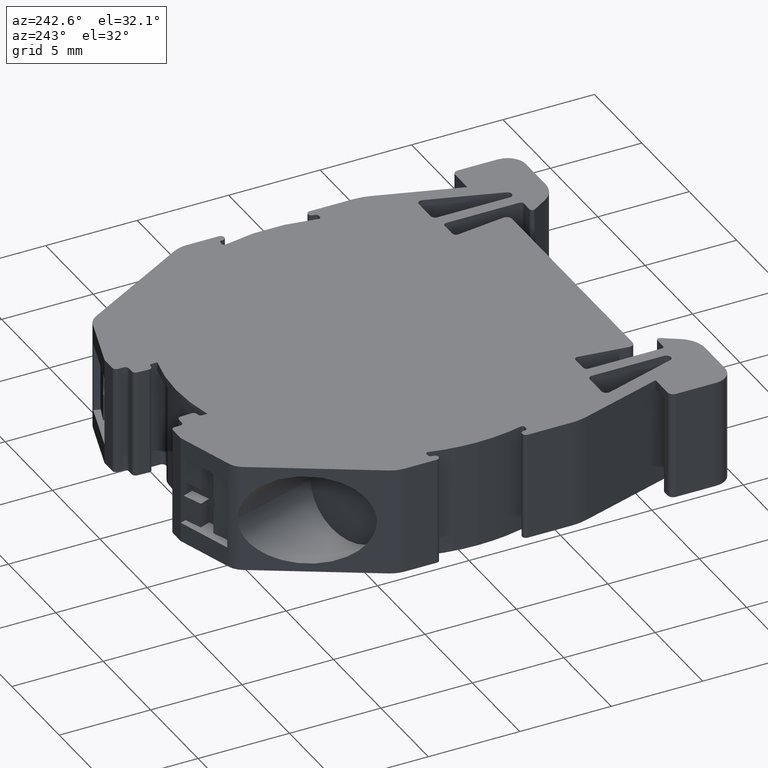
[diagram: clean part render]
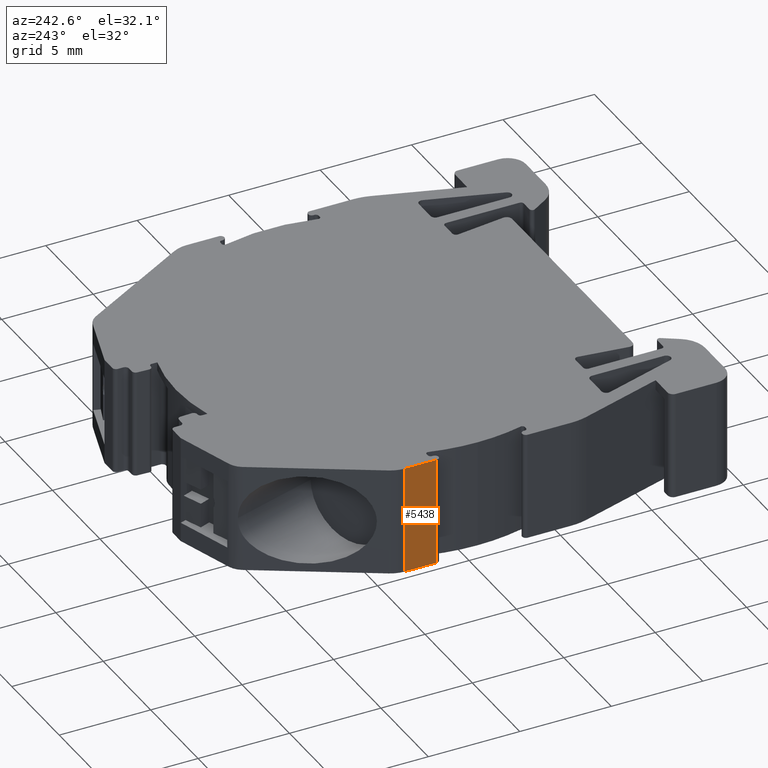
[diagram: same view with one face highlighted and labeled with its STEP entity id]
A machine part, auxiliary view. The second image highlights one B-rep face of the part: STEP entity #5438.
In plain terms, the highlighted planar face has unit normal (-1, -0, 0).
Its self-contained STEP definition (entity closure, byte-faithful):
#107 = CARTESIAN_POINT ( 'NONE',  ( 279.7859380906462000, 446.8744436718486100, -12.95259855432815500 ) ) ;
#127 = LINE ( 'NONE', #107, #6154 ) ;
#132 = DIRECTION ( 'NONE',  ( 0.0000000000000000000, 0.0000000000000000000, 1.000000000000000000 ) ) ;
#286 = DIRECTION ( 'NONE',  ( -0.0000000000000000000, -0.0000000000000000000, -1.000000000000000000 ) ) ;
#309 = CARTESIAN_POINT ( 'NONE',  ( 279.7859378434560000, 448.6419330427179900, -12.95259855432815500 ) ) ;
#320 = LINE ( 'NONE', #309, #6223 ) ;
#542 = LINE ( 'NONE', #546, #6360 ) ;
#546 = CARTESIAN_POINT ( 'NONE',  ( 279.7859380095745200, 447.4541322948581400, -51.32999999999999800 ) ) ;
#567 = DIRECTION ( 'NONE',  ( 1.398538501828921900E-007, -0.9999999999999902300, 0.0000000000000000000 ) ) ;
#677 = DIRECTION ( 'NONE',  ( 0.0000000000000000000, -1.000000000000000000, -0.0000000000000000000 ) ) ;
#681 = LINE ( 'NONE', #682, #6400 ) ;
#682 = CARTESIAN_POINT ( 'NONE',  ( 279.7859378434560000, 439.4186612704554600, -45.43000000000000000 ) ) ;
#1109 = ORIENTED_EDGE ( 'NONE', *, *, #5112, .T. ) ;
#1958 = CARTESIAN_POINT ( 'NONE',  ( 279.7859380358411800, 446.8744436718787900, -45.43000000000000000 ) ) ;
#1964 = CARTESIAN_POINT ( 'NONE',  ( 279.7859380976387300, 446.8744436718787900, -51.32999999999999800 ) ) ;
#2044 = CARTESIAN_POINT ( 'NONE',  ( 279.7859378434560000, 448.6419330427179900, -45.43000000000000000 ) ) ;
#2056 = CARTESIAN_POINT ( 'NONE',  ( 279.7859378434560500, 448.6419329378276200, -51.32999999999999800 ) ) ;
#2400 = ORIENTED_EDGE ( 'NONE', *, *, #5034, .T. ) ;
#2414 = ORIENTED_EDGE ( 'NONE', *, *, #4975, .T. ) ;
#2434 = ORIENTED_EDGE ( 'NONE', *, *, #5154, .F. ) ;
#2543 = EDGE_LOOP ( 'NONE', ( #2400, #1109, #2414, #2434 ) ) ;
#2681 = VERTEX_POINT ( 'NONE', #1958 ) ;
#2697 = VERTEX_POINT ( 'NONE', #1964 ) ;
#2725 = VERTEX_POINT ( 'NONE', #2056 ) ;
#2762 = VERTEX_POINT ( 'NONE', #2044 ) ;
#4687 = PLANE ( 'NONE',  #5864 ) ;
#4688 = CARTESIAN_POINT ( 'NONE',  ( 279.7859380095745200, 447.4541322948581400, -12.95259855432815500 ) ) ;
#4703 = DIRECTION ( 'NONE',  ( 1.398538501828921900E-007, -0.9999999999999902300, 0.0000000000000000000 ) ) ;
#4711 = DIRECTION ( 'NONE',  ( -0.9999999999999902300, -1.398538501828921900E-007, 0.0000000000000000000 ) ) ;
#4714 = FACE_OUTER_BOUND ( 'NONE', #2543, .T. ) ;
#4975 = EDGE_CURVE ( 'NONE', #2697, #2681, #127, .T. ) ;
#5034 = EDGE_CURVE ( 'NONE', #2762, #2725, #320, .T. ) ;
#5112 = EDGE_CURVE ( 'NONE', #2725, #2697, #542, .T. ) ;
#5154 = EDGE_CURVE ( 'NONE', #2762, #2681, #681, .T. ) ;
#5438 = ADVANCED_FACE ( 'NONE', ( #4714 ), #4687, .T. ) ;
#5864 = AXIS2_PLACEMENT_3D ( 'NONE', #4688, #4711, #4703 ) ;
#6154 = VECTOR ( 'NONE', #132, 1000.000000000000000 ) ;
#6223 = VECTOR ( 'NONE', #286, 1000.000000000000000 ) ;
#6360 = VECTOR ( 'NONE', #567, 1000.000000000000000 ) ;
#6400 = VECTOR ( 'NONE', #677, 1000.000000000000000 ) ;